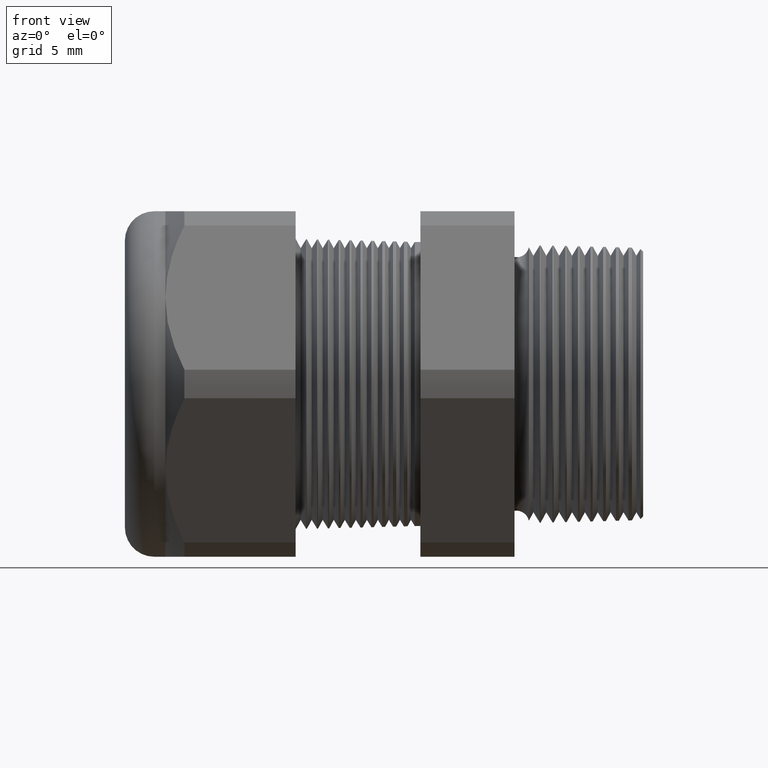
[diagram: clean part render]
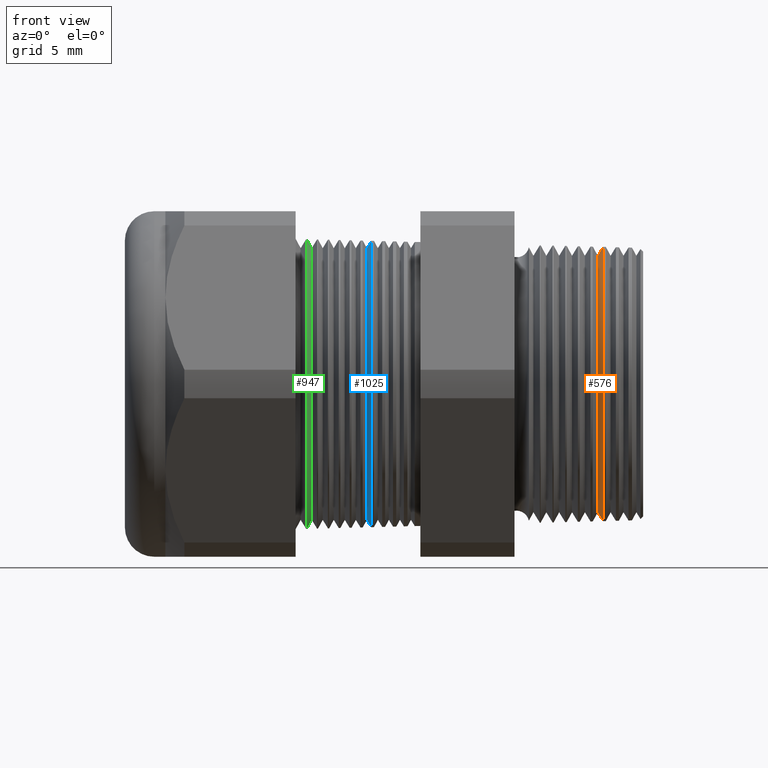
[diagram: same view with three faces highlighted in distinct colors, each labeled with its STEP entity id]
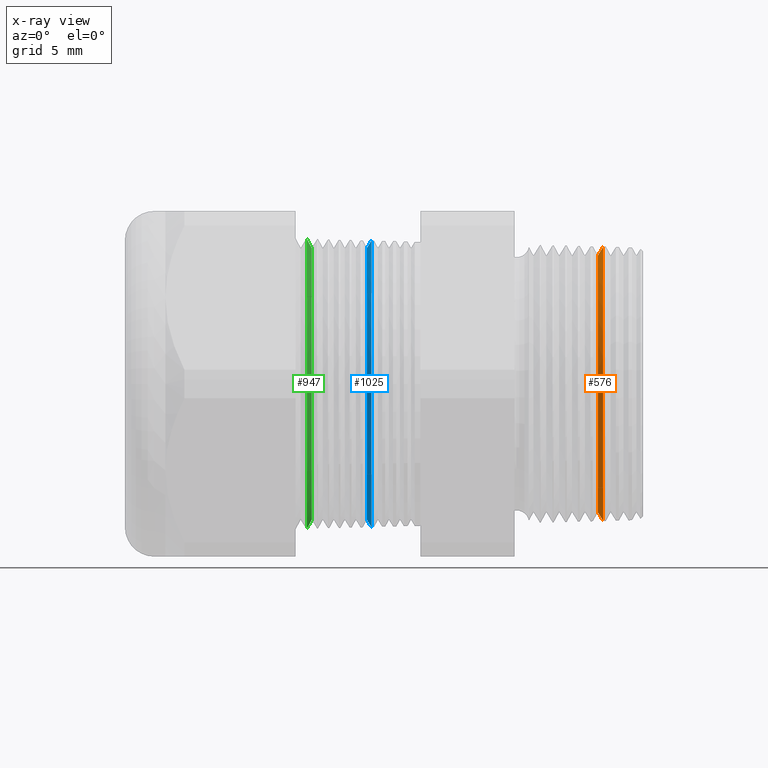
[diagram: x-ray of the same camera — body ghosted, the three highlighted faces saturated]
A machine part, front view with three faces highlighted in distinct colors.
The next image is the same camera in x-ray (body ghosted, the three faces saturated) — at least one of them is partly hidden behind the body in this view.
Their STEP definitions:

[orange] entity #576 — the highlighted conical surface has half-angle 58.5 deg.
#11 = VERTEX_POINT ( 'NONE', #1120 ) ;
#13 = VERTEX_POINT ( 'NONE', #1175 ) ;
#573 = EDGE_CURVE ( 'NONE', #13, #11, #2187, .T. ) ;
#576 = ADVANCED_FACE ( 'NONE', ( #2188 ), #2242, .T. ) ;
#577 = EDGE_LOOP ( 'NONE', ( #578, #579, #580, #634 ) ) ;
#578 = ORIENTED_EDGE ( 'NONE', *, *, #4462, .F. ) ;
#579 = ORIENTED_EDGE ( 'NONE', *, *, #573, .T. ) ;
#580 = ORIENTED_EDGE ( 'NONE', *, *, #4447, .T. ) ;
#634 = ORIENTED_EDGE ( 'NONE', *, *, #4785, .T. ) ;
#1120 = CARTESIAN_POINT ( 'NONE',  ( -0.08347073567907520300, 4.425840462819615600E-017, -0.3489649185127733400 ) ) ;
#1175 = CARTESIAN_POINT ( 'NONE',  ( -0.08347073567907520300, 0.0000000000000000000, 0.3489649185127733400 ) ) ;
#2183 = DIRECTION ( 'NONE',  ( 0.0000000000000000000, 0.0000000000000000000, -1.000000000000000000 ) ) ;
#2184 = DIRECTION ( 'NONE',  ( 1.000000000000000000, 0.0000000000000000000, 0.0000000000000000000 ) ) ;
#2185 = CARTESIAN_POINT ( 'NONE',  ( -0.08347073567907520300, 0.0000000000000000000, 0.0000000000000000000 ) ) ;
#2186 = AXIS2_PLACEMENT_3D ( 'NONE', #2185, #2184, #2183 ) ;
#2187 = CIRCLE ( 'NONE', #2186, 0.3489649185127733400 ) ;
#2188 = FACE_OUTER_BOUND ( 'NONE', #577, .T. ) ;
#2239 = DIRECTION ( 'NONE',  ( 0.0000000000000000000, 0.0000000000000000000, -1.000000000000000000 ) ) ;
#2240 = DIRECTION ( 'NONE',  ( 1.000000000000000000, 0.0000000000000000000, 0.0000000000000000000 ) ) ;
#2241 = AXIS2_PLACEMENT_3D ( 'NONE', #2244, #2240, #2239 ) ;
#2242 = CONICAL_SURFACE ( 'NONE', #2241, 0.3489649185127733400, 1.021017612416698700 ) ;
#2244 = CARTESIAN_POINT ( 'NONE',  ( -0.08347073567907520300, 0.0000000000000000000, 0.0000000000000000000 ) ) ;
#3335 = LINE ( 'NONE', #3396, #3395 ) ;
#3394 = DIRECTION ( 'NONE',  ( 0.5224985647159352500, 0.0000000000000000000, -0.8526401643541005000 ) ) ;
#3395 = VECTOR ( 'NONE', #3394, 39.37007874015748900 ) ;
#3396 = CARTESIAN_POINT ( 'NONE',  ( -0.08347073567907520300, 0.0000000000000000000, -0.3489649185127733400 ) ) ;
#3420 = CARTESIAN_POINT ( 'NONE',  ( -0.06868745204509199600, 0.0000000000000000000, 0.3730890448521971300 ) ) ;
#3428 = DIRECTION ( 'NONE',  ( 0.5224985647159352500, 1.044183048100722500E-016, 0.8526401643541005000 ) ) ;
#3429 = VECTOR ( 'NONE', #3428, 39.37007874015748900 ) ;
#3430 = CARTESIAN_POINT ( 'NONE',  ( -0.08347073567907520300, 4.273587704713848000E-017, 0.3489649185127733400 ) ) ;
#3431 = LINE ( 'NONE', #3430, #3429 ) ;
#3635 = CARTESIAN_POINT ( 'NONE',  ( -0.06868745204509199600, 4.569023045751865900E-017, -0.3730890448521971300 ) ) ;
#4007 = DIRECTION ( 'NONE',  ( 0.0000000000000000000, 0.0000000000000000000, -1.000000000000000000 ) ) ;
#4008 = DIRECTION ( 'NONE',  ( -1.000000000000000000, 0.0000000000000000000, 0.0000000000000000000 ) ) ;
#4019 = AXIS2_PLACEMENT_3D ( 'NONE', #4022, #4008, #4007 ) ;
#4020 = CIRCLE ( 'NONE', #4019, 0.3730890448521972400 ) ;
#4022 = CARTESIAN_POINT ( 'NONE',  ( -0.06868745204509199600, 0.0000000000000000000, 0.0000000000000000000 ) ) ;
#4447 = EDGE_CURVE ( 'NONE', #11, #4578, #3335, .T. ) ;
#4462 = EDGE_CURVE ( 'NONE', #13, #4468, #3431, .T. ) ;
#4468 = VERTEX_POINT ( 'NONE', #3420 ) ;
#4578 = VERTEX_POINT ( 'NONE', #3635 ) ;
#4785 = EDGE_CURVE ( 'NONE', #4578, #4468, #4020, .T. ) ;

[blue] entity #1025 — the highlighted conical surface has half-angle 58.5 deg.
#1022 = EDGE_CURVE ( 'NONE', #4351, #4354, #2879, .T. ) ;
#1025 = ADVANCED_FACE ( 'NONE', ( #2875 ), #2874, .T. ) ;
#1026 = EDGE_LOOP ( 'NONE', ( #1027, #1028, #1079, #1080 ) ) ;
#1027 = ORIENTED_EDGE ( 'NONE', *, *, #4365, .F. ) ;
#1028 = ORIENTED_EDGE ( 'NONE', *, *, #1022, .T. ) ;
#1079 = ORIENTED_EDGE ( 'NONE', *, *, #4348, .T. ) ;
#1080 = ORIENTED_EDGE ( 'NONE', *, *, #4443, .T. ) ;
#2869 = DIRECTION ( 'NONE',  ( 0.0000000000000000000, 0.0000000000000000000, -1.000000000000000000 ) ) ;
#2870 = DIRECTION ( 'NONE',  ( 1.000000000000000000, 0.0000000000000000000, 0.0000000000000000000 ) ) ;
#2871 = CARTESIAN_POINT ( 'NONE',  ( -0.7116586839320377900, 0.0000000000000000000, 0.0000000000000000000 ) ) ;
#2872 = AXIS2_PLACEMENT_3D ( 'NONE', #2871, #2870, #2869 ) ;
#2874 = CONICAL_SURFACE ( 'NONE', #2872, 0.3696307351718083900, 1.021017612416699200 ) ;
#2875 = FACE_OUTER_BOUND ( 'NONE', #1026, .T. ) ;
#2876 = DIRECTION ( 'NONE',  ( 0.0000000000000000000, 0.0000000000000000000, -1.000000000000000000 ) ) ;
#2877 = DIRECTION ( 'NONE',  ( 1.000000000000000000, 0.0000000000000000000, 0.0000000000000000000 ) ) ;
#2878 = AXIS2_PLACEMENT_3D ( 'NONE', #2883, #2877, #2876 ) ;
#2879 = CIRCLE ( 'NONE', #2878, 0.3696307351718083900 ) ;
#2883 = CARTESIAN_POINT ( 'NONE',  ( -0.7116586839320377900, 0.0000000000000000000, 0.0000000000000000000 ) ) ;
#3152 = CARTESIAN_POINT ( 'NONE',  ( -0.7116586839320377900, 0.0000000000000000000, 0.3696307351718083900 ) ) ;
#3153 = DIRECTION ( 'NONE',  ( 0.5224985647159348100, 0.0000000000000000000, -0.8526401643541007300 ) ) ;
#3154 = VECTOR ( 'NONE', #3153, 39.37007874015748900 ) ;
#3155 = CARTESIAN_POINT ( 'NONE',  ( -0.7116586839320377900, 0.0000000000000000000, -0.3696307351718083900 ) ) ;
#3156 = LINE ( 'NONE', #3155, #3154 ) ;
#3169 = CARTESIAN_POINT ( 'NONE',  ( -0.6994182475128922800, 4.771288982637477800E-017, -0.3896053119935833900 ) ) ;
#3175 = CARTESIAN_POINT ( 'NONE',  ( -0.6994182475128922800, 0.0000000000000000000, 0.3896053119935833900 ) ) ;
#3192 = DIRECTION ( 'NONE',  ( 0.5224985647159348100, 1.044183048100722500E-016, 0.8526401643541007300 ) ) ;
#3193 = VECTOR ( 'NONE', #3192, 39.37007874015748900 ) ;
#3194 = CARTESIAN_POINT ( 'NONE',  ( -0.7116586839320377900, 4.526670966946381200E-017, 0.3696307351718083900 ) ) ;
#3195 = LINE ( 'NONE', #3194, #3193 ) ;
#3208 = CARTESIAN_POINT ( 'NONE',  ( -0.7116586839320377900, 4.652734989755814500E-017, -0.3696307351718083900 ) ) ;
#3341 = DIRECTION ( 'NONE',  ( 0.0000000000000000000, 0.0000000000000000000, -1.000000000000000000 ) ) ;
#3342 = DIRECTION ( 'NONE',  ( -1.000000000000000000, 0.0000000000000000000, 0.0000000000000000000 ) ) ;
#3343 = AXIS2_PLACEMENT_3D ( 'NONE', #3349, #3342, #3341 ) ;
#3344 = CIRCLE ( 'NONE', #3343, 0.3896053119935833900 ) ;
#3349 = CARTESIAN_POINT ( 'NONE',  ( -0.6994182475128922800, 0.0000000000000000000, 0.0000000000000000000 ) ) ;
#4340 = VERTEX_POINT ( 'NONE', #3175 ) ;
#4343 = VERTEX_POINT ( 'NONE', #3169 ) ;
#4348 = EDGE_CURVE ( 'NONE', #4354, #4343, #3156, .T. ) ;
#4351 = VERTEX_POINT ( 'NONE', #3152 ) ;
#4354 = VERTEX_POINT ( 'NONE', #3208 ) ;
#4365 = EDGE_CURVE ( 'NONE', #4351, #4340, #3195, .T. ) ;
#4443 = EDGE_CURVE ( 'NONE', #4343, #4340, #3344, .T. ) ;

[green] entity #947 — the highlighted conical surface has half-angle 61.5 deg.
#214 = EDGE_CURVE ( 'NONE', #409, #406, #1537, .T. ) ;
#339 = VERTEX_POINT ( 'NONE', #1745 ) ;
#340 = VERTEX_POINT ( 'NONE', #1803 ) ;
#380 = EDGE_CURVE ( 'NONE', #340, #409, #1851, .T. ) ;
#405 = EDGE_CURVE ( 'NONE', #339, #406, #1924, .T. ) ;
#406 = VERTEX_POINT ( 'NONE', #1920 ) ;
#409 = VERTEX_POINT ( 'NONE', #1914 ) ;
#947 = ADVANCED_FACE ( 'NONE', ( #2741 ), #2740, .T. ) ;
#948 = EDGE_LOOP ( 'NONE', ( #949, #950, #1004, #1005 ) ) ;
#949 = ORIENTED_EDGE ( 'NONE', *, *, #405, .F. ) ;
#950 = ORIENTED_EDGE ( 'NONE', *, *, #1003, .F. ) ;
#1003 = EDGE_CURVE ( 'NONE', #340, #339, #2848, .T. ) ;
#1004 = ORIENTED_EDGE ( 'NONE', *, *, #380, .T. ) ;
#1005 = ORIENTED_EDGE ( 'NONE', *, *, #214, .T. ) ;
#1534 = DIRECTION ( 'NONE',  ( 0.0000000000000000000, 0.0000000000000000000, 1.000000000000000000 ) ) ;
#1535 = DIRECTION ( 'NONE',  ( 1.000000000000000000, 0.0000000000000000000, 0.0000000000000000000 ) ) ;
#1536 = AXIS2_PLACEMENT_3D ( 'NONE', #1542, #1535, #1534 ) ;
#1537 = CIRCLE ( 'NONE', #1536, 0.3942030920791805800 ) ;
#1542 = CARTESIAN_POINT ( 'NONE',  ( -0.8750003851684460300, 0.0000000000000000000, 0.0000000000000000000 ) ) ;
#1745 = CARTESIAN_POINT ( 'NONE',  ( -0.8616586839320378200, 4.677133258116980000E-017, -0.3696307351718083900 ) ) ;
#1803 = CARTESIAN_POINT ( 'NONE',  ( -0.8616586839320378200, 0.0000000000000000000, 0.3696307351718083900 ) ) ;
#1848 = DIRECTION ( 'NONE',  ( -0.4771587602596235600, 0.0000000000000000000, 0.8788171126619570600 ) ) ;
#1849 = VECTOR ( 'NONE', #1848, 39.37007874015748900 ) ;
#1850 = CARTESIAN_POINT ( 'NONE',  ( -0.8754330708661419700, 0.0000000000000000000, 0.3950000000000000200 ) ) ;
#1851 = LINE ( 'NONE', #1850, #1849 ) ;
#1914 = CARTESIAN_POINT ( 'NONE',  ( -0.8750003851684460300, 0.0000000000000000000, 0.3942030920791805800 ) ) ;
#1920 = CARTESIAN_POINT ( 'NONE',  ( -0.8750003851684460300, 4.827848099093028400E-017, -0.3942030920791805800 ) ) ;
#1921 = DIRECTION ( 'NONE',  ( -0.4771587602596235600, 1.076240564057384600E-016, -0.8788171126619570600 ) ) ;
#1922 = VECTOR ( 'NONE', #1921, 39.37007874015748900 ) ;
#1923 = CARTESIAN_POINT ( 'NONE',  ( -0.8754330708661419700, 4.837354856632045600E-017, -0.3950000000000000200 ) ) ;
#1924 = LINE ( 'NONE', #1923, #1922 ) ;
#2736 = DIRECTION ( 'NONE',  ( 0.0000000000000000000, 0.0000000000000000000, 1.000000000000000000 ) ) ;
#2737 = DIRECTION ( 'NONE',  ( -1.000000000000000000, 0.0000000000000000000, 0.0000000000000000000 ) ) ;
#2738 = AXIS2_PLACEMENT_3D ( 'NONE', #2745, #2737, #2736 ) ;
#2740 = CONICAL_SURFACE ( 'NONE', #2738, 0.3950000000000000200, 1.073377489976495400 ) ;
#2741 = FACE_OUTER_BOUND ( 'NONE', #948, .T. ) ;
#2745 = CARTESIAN_POINT ( 'NONE',  ( -0.8754330708661419700, 0.0000000000000000000, 0.0000000000000000000 ) ) ;
#2845 = DIRECTION ( 'NONE',  ( 0.0000000000000000000, 0.0000000000000000000, -1.000000000000000000 ) ) ;
#2846 = DIRECTION ( 'NONE',  ( 1.000000000000000000, 0.0000000000000000000, 0.0000000000000000000 ) ) ;
#2847 = AXIS2_PLACEMENT_3D ( 'NONE', #2853, #2846, #2845 ) ;
#2848 = CIRCLE ( 'NONE', #2847, 0.3696307351718083900 ) ;
#2853 = CARTESIAN_POINT ( 'NONE',  ( -0.8616586839320378200, 0.0000000000000000000, 0.0000000000000000000 ) ) ;